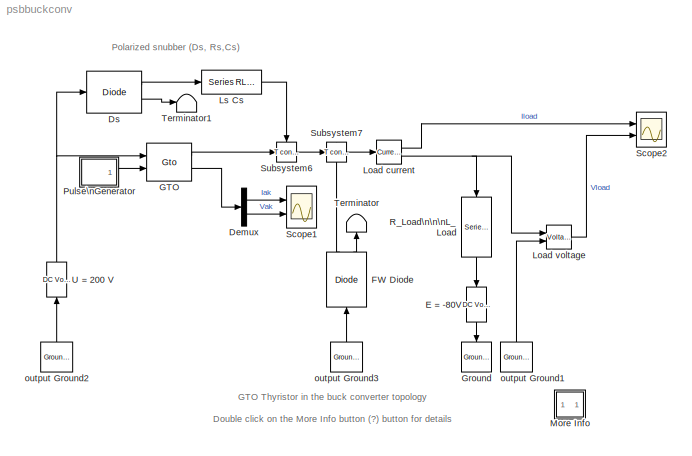
MODEL psbbuckconv
KIND model
BLOCK [Demux] Demux
  Outputs = 2
  Ports = [1, 2]
BLOCK [Reference] Ds  REF=powerlib2/Power\nElectronics/Diode
  Cs = Inf
  IC = 0
  Lon = 1e-6
  PSBOutputType = 10
  Ports = [1, 2]
  Ron = 0.01
  Rs = 100
  SourceBlock = powerlib2/Power\nElectronics/Diode
  SourceType = Diode
  Tag = PoWeRsYsTeMbLoCk
  Vf = 0.8
BLOCK [Reference] E = -80V  REF=powerlib2/Electrical\nSources/DC Voltage Source
  PSBOutputType = 1
  Ports = [1, 1]
  SourceBlock = powerlib2/Electrical\nSources/DC Voltage Source
  SourceType = DC Voltage Source
  Tag = PoWeRsYsTeMbLoCk
  V = -80
  mesure = None
BLOCK [Reference] FW Diode  REF=powerlib2/Power\nElectronics/Diode
  Cs = 0.1e-6
  IC = 0
  Lon = 1e-6
  PSBOutputType = 10
  Ports = [1, 2]
  Ron = 0.01
  Rs = 100
  SourceBlock = powerlib2/Power\nElectronics/Diode
  SourceType = Diode
  Tag = PoWeRsYsTeMbLoCk
  Vf = 0.8
BLOCK [Reference] GTO  REF=powerlib2/Power\nElectronics/Gto
  Cs = 0
  IC = 0
  Lon = 1e-6
  PSBOutputType = 10
  Ports = [2, 2]
  Ron = 0.01
  Rs = Inf
  SourceBlock = powerlib2/Power\nElectronics/Gto
  SourceType = Gto
  Tag = PoWeRsYsTeMbLoCk
  Tf = 10e-6
  Tt = 20e-6
  Vf = 1
BLOCK [Reference] Ground  REF=powerlib2/Connectors/Ground (input)
  Ports = [1]
  SourceBlock = powerlib2/Connectors/Ground (input)
  SourceType = Ground
  Tag = PoWeRsYsTeMbLoCk
BLOCK [Reference] Load current  REF=powerlib2/Measurements/Current Measurement
  OutputType = Magnitude
  PSBOutputType = 01
  PSBequivalent = 0
  PhasorSimulation = off
  Ports = [1, 2]
  SourceBlock = powerlib2/Measurements/Current Measurement
  SourceType = Current Measurement
  Tag = PoWeRsYsTeMmEaSuReMeNt
BLOCK [Reference] Load voltage  REF=powerlib2/Measurements/Voltage Measurement
  OutputType = Magnitude
  PSBOutputType = 0
  PSBequivalent = 0
  PhasorSimulation = off
  Ports = [2, 1]
  SourceBlock = powerlib2/Measurements/Voltage Measurement
  SourceType = Voltage Measurement
  Tag = PoWeRsYsTeMmEaSuReMeNt
BLOCK [Reference] Ls     Cs  REF=powerlib2/Elements/Series RLC Branch
  PSBOutputType = 1
  Ports = [1, 1]
  SourceBlock = powerlib2/Elements/Series RLC Branch
  SourceType = Series RLC Branch
  Tag = PoWeRsYsTeMbLoCk
  a = 0
  b = 5e-7
  c = 2e-6
  mesure = None
BLOCK [SubSystem] More Info
  MaskDisplay = disp('?')
  MaskIconFrame = on
  MaskIconOpaque = on
  MaskIconRotate = none
  MaskIconUnits = autoscale
  MinAlgLoopOccurrences = off
  Ports = []
  RTWSystemCode = Auto
  TreatAsAtomicUnit = off
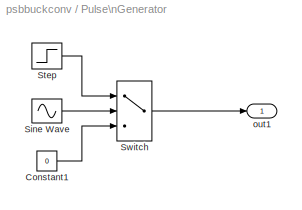
BLOCK [SubSystem] Pulse\nGenerator
  MaskCallbackString = |||
  MaskDescription = Pulse Generator
  MaskDisplay = plot(0,0,100,100,[95,90,90,75,75,60,60,45,45,30,30,15,15,5],[25,25,75,75,25,25,75,75,25,25,75,75,25,25]); \n                                                                                                          \n
  MaskEnableString = on,on,on,on
  MaskHelp = Pulse generator which ensures pulse transitions are hit. Provides a vector of pulses when the height is entered as a vector.  Unmask to see how it works.
  MaskIconFrame = on
  MaskIconOpaque = on
  MaskIconRotate = none
  MaskIconUnits = autoscale
  MaskInitialization = \n
  MaskPromptString = Period (secs):|Duty cycle (% of period):|Amplitude:|Start time:
  MaskStyleString = edit,edit,edit,edit
  MaskTabNameString = ,,,
  MaskToolTipString = on,on,on,on
  MaskTunableValueString = on,on,on,on
  MaskType = Pulse Generator
  MaskValueString = 1e-3|60|1|0
  MaskVarAliasString = ,,,
  MaskVariables = period=@1;duty=@2;amplitude=@3;start=@4;
  MaskVisibilityString = on,on,on,on
  MinAlgLoopOccurrences = off
  Ports = [0, 1]
  RTWSystemCode = Auto
  TreatAsAtomicUnit = off
BLOCK [Constant] Pulse\nGenerator/Constant1
  Value = 0
BLOCK [Sin] Pulse\nGenerator/Sine Wave
  Frequency = 2*pi./period
  Phase = -2*pi*(start./period + duty/200 - 1/4)
  Ports = [0, 1]
  SampleTime = 0
  SineType = Time based
BLOCK [Step] Pulse\nGenerator/Step
  After = amplitude
  SampleTime = 0
  Time = start
BLOCK [Switch] Pulse\nGenerator/Switch
  Threshold = sin(pi*(0.5 - duty/100))
BLOCK [Outport] Pulse\nGenerator/out1
  IconDisplay = Port number
  InitialOutput = 0
BLOCK [Reference] R_Load\n\n\nL_Load  REF=powerlib2/Elements/Series RLC Branch
  PSBOutputType = 1
  Ports = [1, 1]
  SourceBlock = powerlib2/Elements/Series RLC Branch
  SourceType = Series RLC Branch
  Tag = PoWeRsYsTeMbLoCk
  a = 1
  b = 5e-03
  c = inf
  mesure = None
BLOCK [Scope] Scope1
  DataFormat = Array
  LimitDataPoints = off
  MaxDataPoints = 500000
  NumInputPorts = 2
  Ports = [2]
  TimeRange = 0.01
  YMax = 60~300
  YMin = 0~0
BLOCK [Scope] Scope2
  DataFormat = Array
  LimitDataPoints = off
  MaxDataPoints = 500000
  NumInputPorts = 2
  Ports = [2]
  TimeRange = 0.01
  YMax = 50~200
  YMin = -50~-100
  ZoomMode = xonly
BLOCK [Reference] Subsystem6  REF=powerlib2/Connectors/T connector
  PSBOutputType = 1
  Ports = [1, 1, 1]
  SourceBlock = powerlib2/Connectors/T connector
  SourceType = Bus Bar
  Tag = PoWeRsYsTeMbLoCk
BLOCK [Reference] Subsystem7  REF=powerlib2/Connectors/T connector
  PSBOutputType = 1
  Ports = [1, 1, 1]
  SourceBlock = powerlib2/Connectors/T connector
  SourceType = Bus Bar
  Tag = PoWeRsYsTeMbLoCk
BLOCK [Terminator] Terminator
BLOCK [Terminator] Terminator1
BLOCK [Reference] U = 200 V  REF=powerlib2/Electrical\nSources/DC Voltage Source
  PSBOutputType = 1
  Ports = [1, 1]
  SourceBlock = powerlib2/Electrical\nSources/DC Voltage Source
  SourceType = DC Voltage Source
  Tag = PoWeRsYsTeMbLoCk
  V = 200
  mesure = None
BLOCK [Reference] output Ground1  REF=powerlib2/Connectors/Ground (output)
  PSBOutputType = 1
  Ports = [0, 1]
  SourceBlock = powerlib2/Connectors/Ground (output)
  SourceType = Ground
  Tag = PoWeRsYsTeMbLoCk
BLOCK [Reference] output Ground2  REF=powerlib2/Connectors/Ground (output)
  PSBOutputType = 1
  Ports = [0, 1]
  SourceBlock = powerlib2/Connectors/Ground (output)
  SourceType = Ground
  Tag = PoWeRsYsTeMbLoCk
BLOCK [Reference] output Ground3  REF=powerlib2/Connectors/Ground (output)
  PSBOutputType = 1
  Ports = [0, 1]
  SourceBlock = powerlib2/Connectors/Ground (output)
  SourceType = Ground
  Tag = PoWeRsYsTeMbLoCk
ANNOTATION (root): Double click on the More Info button (?) button for details
ANNOTATION (root): GTO Thyristor in the buck converter topology
ANNOTATION (root): Polarized snubber (Ds, Rs,Cs)
ANNOTATION More Info: This example illustrates use of the GTO-thyristor in the buck converter topology
ANNOTATION More Info: A basic polarized snubber circuit ( consisting of Ds, Rs and Cs) is connected across the GTO.\nThe parasitic inductance Ls of the snubber is also taken into consideration. \nThe operating frequency is 1 kHz and the duty cycle is 60%.
ANNOTATION More Info: Circuit Description
LINE Demux:1 -> Scope1:1
LINE Demux:2 -> Scope1:2
LINE Ds:1 -> Ls     Cs:1
LINE Ds:2 -> Terminator1:1
LINE E = -80V:1 -> Ground:1
LINE FW Diode:1 -> Subsystem7:enable
LINE FW Diode:2 -> Terminator:1
LINE GTO:1 -> Subsystem6:1
LINE GTO:2 -> Demux:1
LINE Load current:1 -> Scope2:1
NET Load current:2 -> Load voltage:1, R_Load\n\n\nL_Load:1
LINE Load voltage:1 -> Scope2:2
LINE Ls     Cs:1 -> Subsystem6:enable
LINE Pulse\nGenerator/Constant1:1 -> Pulse\nGenerator/Switch:3
LINE Pulse\nGenerator/Sine Wave:1 -> Pulse\nGenerator/Switch:2
LINE Pulse\nGenerator/Step:1 -> Pulse\nGenerator/Switch:1
LINE Pulse\nGenerator/Switch:1 -> Pulse\nGenerator/out1:1
LINE Pulse\nGenerator:1 -> GTO:2
LINE R_Load\n\n\nL_Load:1 -> E = -80V:1
LINE Subsystem6:1 -> Subsystem7:1
LINE Subsystem7:1 -> Load current:1
NET U = 200 V:1 -> Ds:1, GTO:1
LINE output Ground1:1 -> Load voltage:2
LINE output Ground2:1 -> U = 200 V:1
LINE output Ground3:1 -> FW Diode:1
note: NET lines group one-source signal fan-out (src -> all destinations, sorted); 1:1 wires keep LINE
